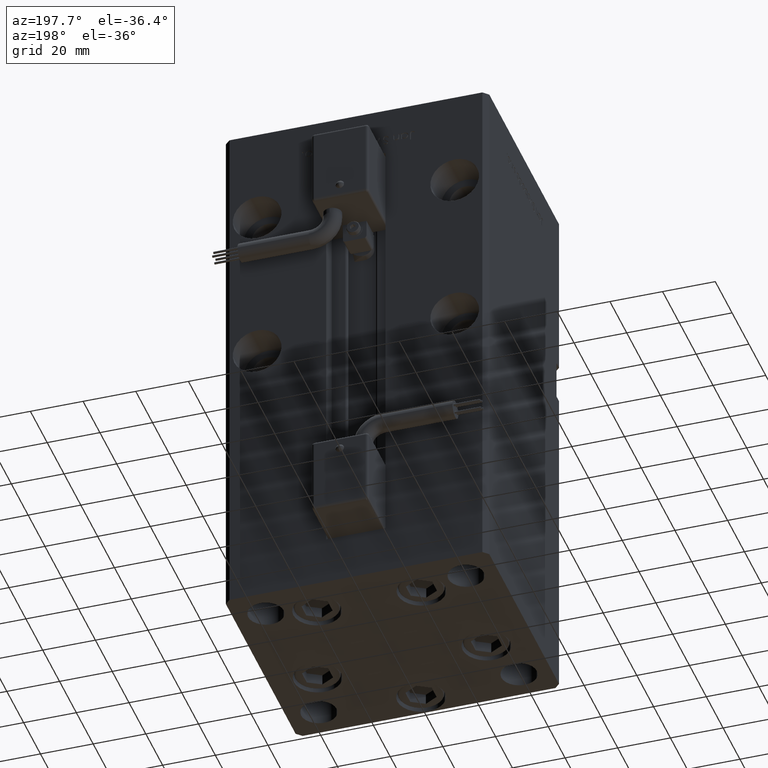
[diagram: clean part render]
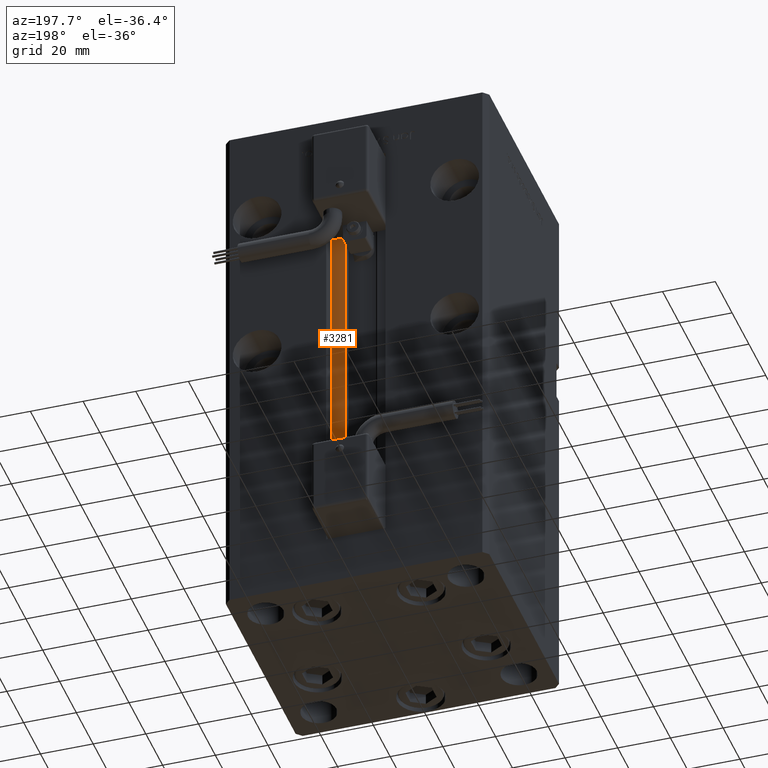
[diagram: same view with one face highlighted and labeled with its STEP entity id]
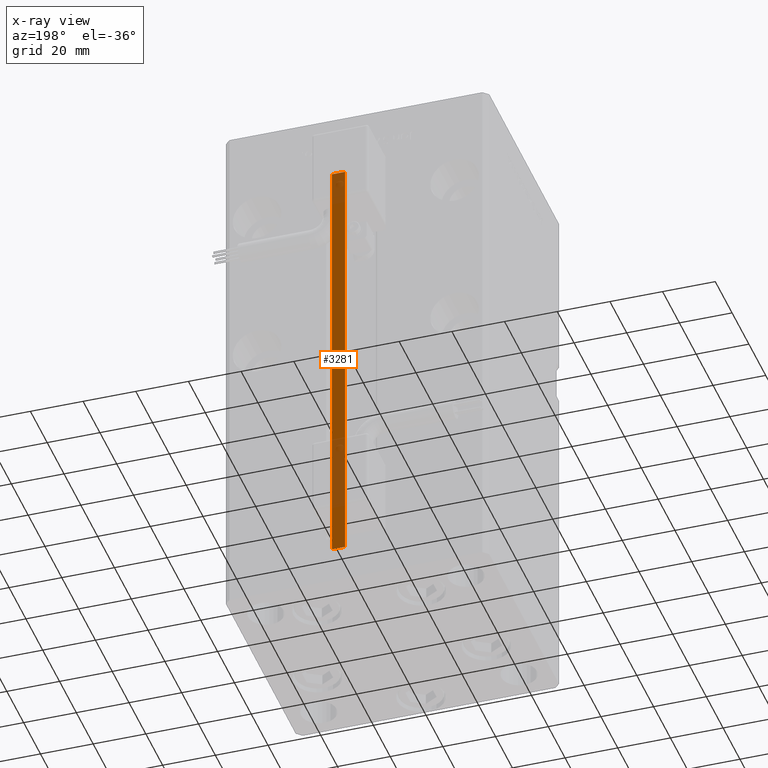
[diagram: x-ray of the same camera — body ghosted, the highlighted face saturated]
A machine part, auxiliary view. The second image highlights one B-rep face of the part: STEP entity #3281.
The next image is the same camera in x-ray: the body ghosted, the highlighted face saturated — about 26% of this face is hidden behind the body in this view.
In plain terms, the highlighted planar face has unit normal (0, -1, 0).
Its self-contained STEP definition (entity closure, byte-faithful):
#1108 = EDGE_CURVE ( 'NONE', #41267, #43876, #49797, .T. ) ;
#1906 = DIRECTION ( 'NONE',  ( 0.000000000000000000, -0.000000000000000000, -1.000000000000000000 ) ) ;
#3281 = ADVANCED_FACE ( 'NONE', ( #45259 ), #10476, .F. ) ;
#4040 = DIRECTION ( 'NONE',  ( -0.000000000000000000, -0.000000000000000000, 1.000000000000000000 ) ) ;
#5099 = EDGE_LOOP ( 'NONE', ( #54898, #34693, #49569, #18427 ) ) ;
#6191 = DIRECTION ( 'NONE',  ( 0.000000000000000000, -1.000000000000000000, 0.000000000000000000 ) ) ;
#6394 = CARTESIAN_POINT ( 'NONE',  ( 11.24999999999999645, 37.00000000000000000, 168.5000000000000000 ) ) ;
#7197 = VERTEX_POINT ( 'NONE', #29068 ) ;
#7274 = CARTESIAN_POINT ( 'NONE',  ( 11.24999999999999645, 37.00000000000000000, 0.000000000000000000 ) ) ;
#10476 = PLANE ( 'NONE',  #41022 ) ;
#11547 = LINE ( 'NONE', #7274, #48531 ) ;
#11663 = EDGE_CURVE ( 'NONE', #54138, #43876, #55953, .T. ) ;
#12008 = VECTOR ( 'NONE', #4040, 1000.000000000000000 ) ;
#14256 = EDGE_CURVE ( 'NONE', #7197, #41267, #11547, .T. ) ;
#14694 = CARTESIAN_POINT ( 'NONE',  ( 6.183333333333996151, 37.00000000000000000, 0.000000000000000000 ) ) ;
#15564 = DIRECTION ( 'NONE',  ( -1.000000000000000000, 0.000000000000000000, 0.000000000000000000 ) ) ;
#18381 = DIRECTION ( 'NONE',  ( 1.000000000000000000, 0.000000000000000000, 0.000000000000000000 ) ) ;
#18427 = ORIENTED_EDGE ( 'NONE', *, *, #1108, .F. ) ;
#20424 = VECTOR ( 'NONE', #18381, 1000.000000000000000 ) ;
#22690 = EDGE_CURVE ( 'NONE', #54138, #7197, #26936, .T. ) ;
#26936 = LINE ( 'NONE', #40073, #20424 ) ;
#27866 = CARTESIAN_POINT ( 'NONE',  ( 6.183333333333996151, 37.00000000000000000, 0.000000000000000000 ) ) ;
#29068 = CARTESIAN_POINT ( 'NONE',  ( 11.24999999999999645, 37.00000000000000000, 0.000000000000000000 ) ) ;
#34269 = CARTESIAN_POINT ( 'NONE',  ( 6.183333333333996151, 37.00000000000000000, 0.000000000000000000 ) ) ;
#34693 = ORIENTED_EDGE ( 'NONE', *, *, #22690, .F. ) ;
#40073 = CARTESIAN_POINT ( 'NONE',  ( 6.183333333333996151, 37.00000000000000000, 0.000000000000000000 ) ) ;
#41022 = AXIS2_PLACEMENT_3D ( 'NONE', #27866, #6191, #1906 ) ;
#41267 = VERTEX_POINT ( 'NONE', #6394 ) ;
#43876 = VERTEX_POINT ( 'NONE', #55614 ) ;
#45259 = FACE_OUTER_BOUND ( 'NONE', #5099, .T. ) ;
#48531 = VECTOR ( 'NONE', #50610, 1000.000000000000000 ) ;
#49114 = VECTOR ( 'NONE', #15564, 1000.000000000000000 ) ;
#49569 = ORIENTED_EDGE ( 'NONE', *, *, #11663, .T. ) ;
#49797 = LINE ( 'NONE', #53513, #49114 ) ;
#50610 = DIRECTION ( 'NONE',  ( -0.000000000000000000, -0.000000000000000000, 1.000000000000000000 ) ) ;
#53513 = CARTESIAN_POINT ( 'NONE',  ( 0.000000000000000000, 37.00000000000000000, 168.5000000000000000 ) ) ;
#54138 = VERTEX_POINT ( 'NONE', #14694 ) ;
#54898 = ORIENTED_EDGE ( 'NONE', *, *, #14256, .F. ) ;
#55614 = CARTESIAN_POINT ( 'NONE',  ( 6.183333333333996151, 37.00000000000000000, 168.5000000000000000 ) ) ;
#55953 = LINE ( 'NONE', #34269, #12008 ) ;